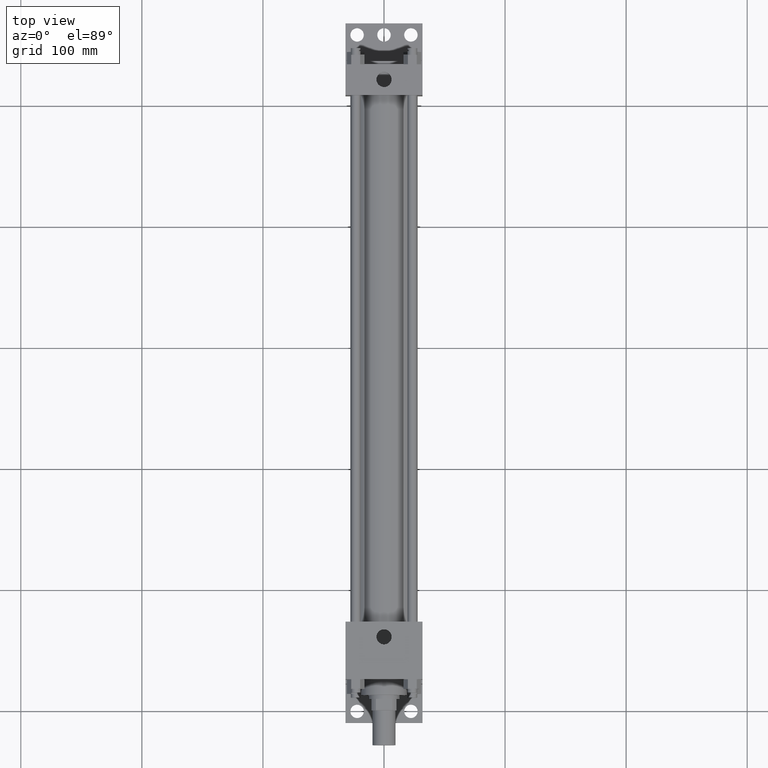
[diagram: clean part render]
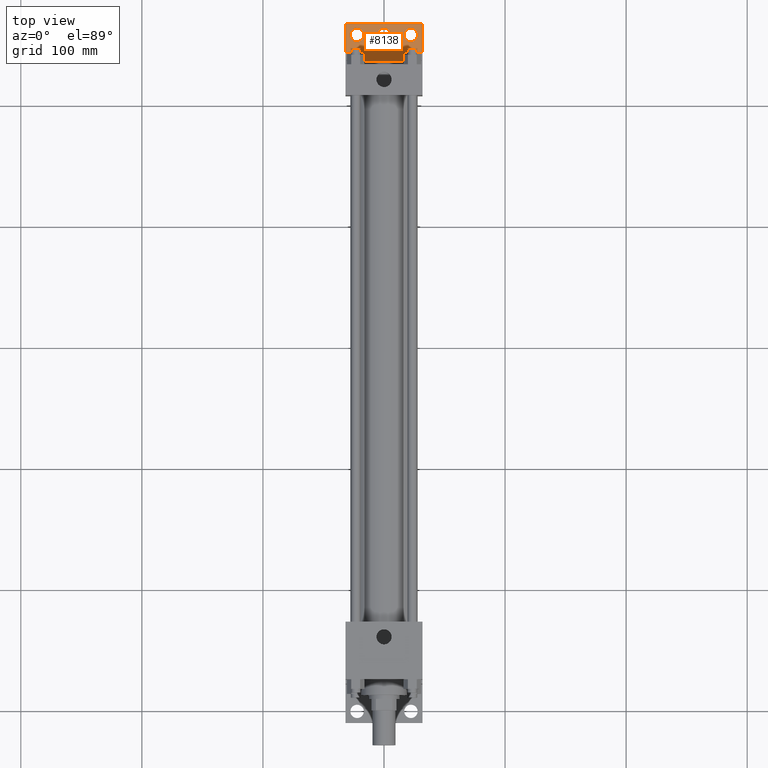
[diagram: same view with one face highlighted and labeled with its STEP entity id]
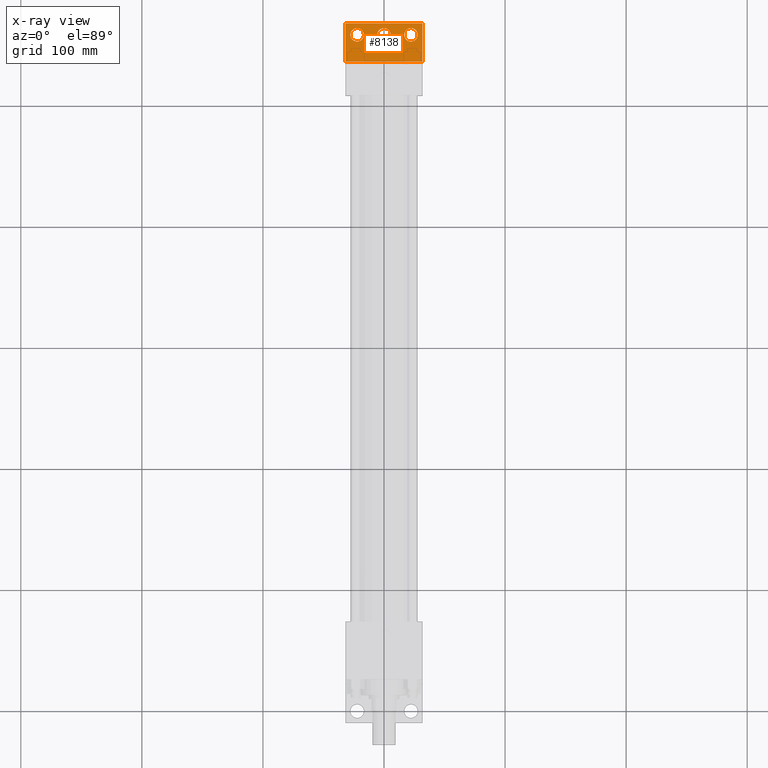
[diagram: x-ray of the same camera — body ghosted, the highlighted face saturated]
A machine part, top view. The second image highlights one B-rep face of the part: STEP entity #8138.
The next image is the same camera in x-ray: the body ghosted, the highlighted face saturated — about 0% of this face is hidden behind the body in this view.
In plain terms, the highlighted planar face has unit normal (0, 0, -1).
Its self-contained STEP definition (entity closure, byte-faithful):
#3725=VERTEX_POINT('',#3726);
#3726=CARTESIAN_POINT('',(3.175000000E+001,5.683250000E+002,-3.333750000E+001));
#3727=EDGE_CURVE('',#3732,#3725,#3728,.T.);
#3728=LINE('',#3729,#3730);
#3729=CARTESIAN_POINT('',(3.175000000E+001,5.365750000E+002,-3.333750000E+001));
#3730=VECTOR('',#3731,1.0E+000);
#3731=DIRECTION('',(0.0E+000,1.0E+000,0.0E+000));
#3732=VERTEX_POINT('',#3733);
#3733=CARTESIAN_POINT('',(3.175000000E+001,5.365750000E+002,-3.333750000E+001));
#3813=VERTEX_POINT('',#3814);
#3814=CARTESIAN_POINT('',(-3.175000000E+001,5.365750000E+002,-3.333750000E+001));
#3815=EDGE_CURVE('',#3813,#3820,#3816,.T.);
#3816=LINE('',#3817,#3818);
#3817=CARTESIAN_POINT('',(-3.175000000E+001,5.365750000E+002,-3.333750000E+001));
#3818=VECTOR('',#3819,1.0E+000);
#3819=DIRECTION('',(0.0E+000,1.0E+000,0.0E+000));
#3820=VERTEX_POINT('',#3821);
#3821=CARTESIAN_POINT('',(-3.175000000E+001,5.683250000E+002,-3.333750000E+001));
#4343=EDGE_CURVE('',#3820,#3725,#4344,.T.);
#4344=LINE('',#4345,#4346);
#4345=CARTESIAN_POINT('',(-3.175000000E+001,5.683250000E+002,-3.333750000E+001));
#4346=VECTOR('',#4347,1.0E+000);
#4347=DIRECTION('',(1.0E+000,0.0E+000,0.0E+000));
#4535=EDGE_CURVE('',#3813,#3732,#4536,.T.);
#4536=LINE('',#4537,#4538);
#4537=CARTESIAN_POINT('',(-3.175000000E+001,5.365750000E+002,-3.333750000E+001));
#4538=VECTOR('',#4539,1.0E+000);
#4539=DIRECTION('',(1.0E+000,0.0E+000,0.0E+000));
#4545=FACE_OUTER_BOUND('',#4549,.T.);
#4546=FACE_BOUND('',#4550,.T.);
#4547=FACE_BOUND('',#4551,.T.);
#4548=FACE_BOUND('',#4552,.T.);
#4549=EDGE_LOOP('',(#4553));
#4550=EDGE_LOOP('',(#4562));
#4551=EDGE_LOOP('',(#4571));
#4552=EDGE_LOOP('',(#4580,#4581,#4582,#4583));
#4553=ORIENTED_EDGE('',*,*,#4554,.T.);
#4554=EDGE_CURVE('',#4560,#4560,#4555,.T.);
#4555=CIRCLE('',#4556,5.556250000E+000);
#4556=AXIS2_PLACEMENT_3D('',#4557,#4558,#4559);
#4557=CARTESIAN_POINT('',(0.000000000E+000,5.588000000E+002,-3.333750000E+001));
#4558=DIRECTION('',(0.0E+000,0.0E+000,-1.0E+000));
#4559=DIRECTION('',(1.0E+000,0.0E+000,0.0E+000));
#4560=VERTEX_POINT('',#4561);
#4561=CARTESIAN_POINT('',(-5.556250000E+000,5.588000000E+002,-3.333750000E+001));
#4562=ORIENTED_EDGE('',*,*,#4563,.T.);
#4563=EDGE_CURVE('',#4569,#4569,#4564,.T.);
#4564=CIRCLE('',#4565,5.556250000E+000);
#4565=AXIS2_PLACEMENT_3D('',#4566,#4567,#4568);
#4566=CARTESIAN_POINT('',(-2.222500000E+001,5.588000000E+002,-3.333750000E+001));
#4567=DIRECTION('',(0.0E+000,0.0E+000,-1.0E+000));
#4568=DIRECTION('',(1.0E+000,0.0E+000,0.0E+000));
#4569=VERTEX_POINT('',#4570);
#4570=CARTESIAN_POINT('',(-1.666875000E+001,5.588000000E+002,-3.333750000E+001));
#4571=ORIENTED_EDGE('',*,*,#4572,.T.);
#4572=EDGE_CURVE('',#4578,#4578,#4573,.T.);
#4573=CIRCLE('',#4574,5.556250000E+000);
#4574=AXIS2_PLACEMENT_3D('',#4575,#4576,#4577);
#4575=CARTESIAN_POINT('',(2.222500000E+001,5.588000000E+002,-3.333750000E+001));
#4576=DIRECTION('',(0.0E+000,0.0E+000,-1.0E+000));
#4577=DIRECTION('',(1.0E+000,0.0E+000,0.0E+000));
#4578=VERTEX_POINT('',#4579);
#4579=CARTESIAN_POINT('',(2.778125000E+001,5.588000000E+002,-3.333750000E+001));
#4580=ORIENTED_EDGE('',*,*,#3727,.T.);
#4581=ORIENTED_EDGE('',*,*,#4343,.F.);
#4582=ORIENTED_EDGE('',*,*,#3815,.F.);
#4583=ORIENTED_EDGE('',*,*,#4535,.T.);
#4584=PLANE('',#4585);
#4585=AXIS2_PLACEMENT_3D('',#4586,#4587,#4588);
#4586=CARTESIAN_POINT('',(-3.175000000E+001,5.365750000E+002,-3.333750000E+001));
#4587=DIRECTION('',(0.0E+000,0.0E+000,-1.0E+000));
#4588=DIRECTION('',(1.0E+000,0.0E+000,0.0E+000));
#8138=ADVANCED_FACE('',(#4545,#4546,#4547,#4548),#4584,.F.);